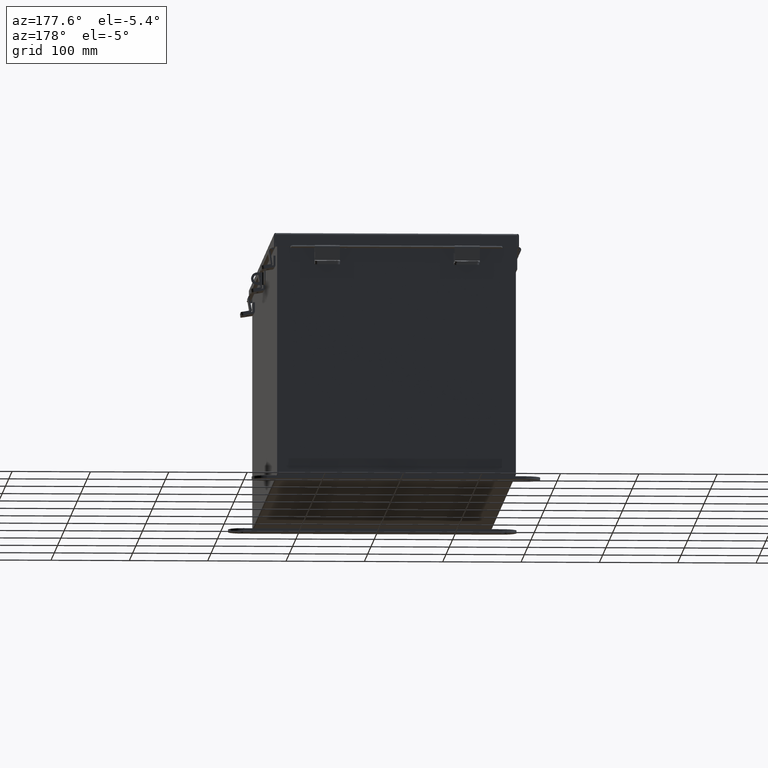
[diagram: clean part render]
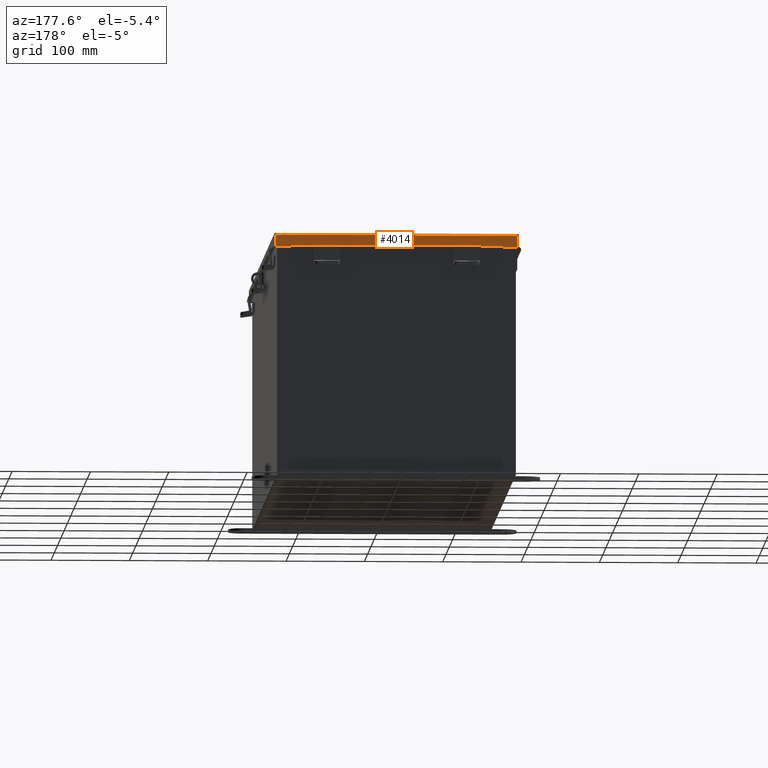
[diagram: same view with one face highlighted and labeled with its STEP entity id]
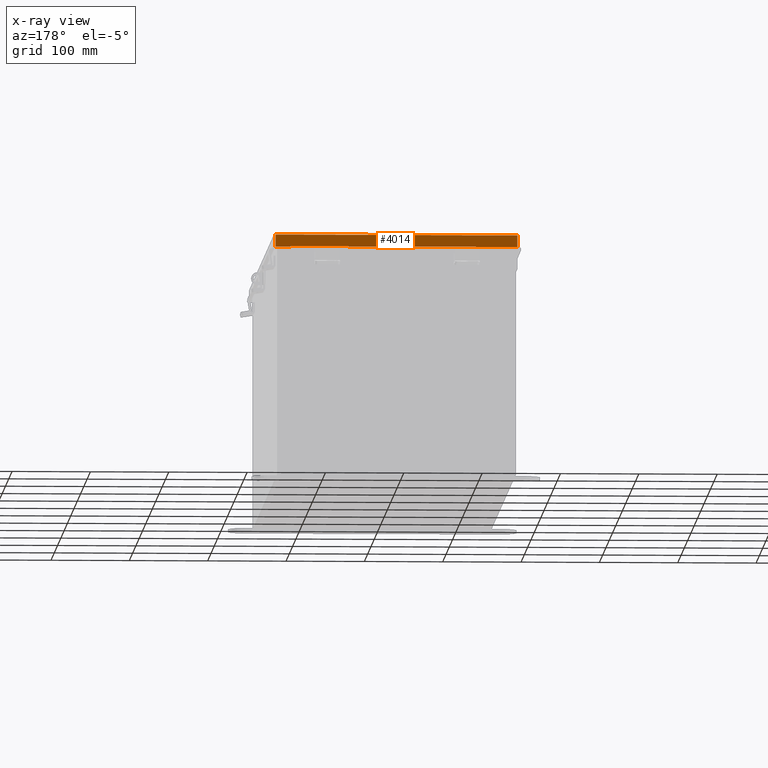
[diagram: x-ray of the same camera — body ghosted, the highlighted face saturated]
A machine part, auxiliary view. The second image highlights one B-rep face of the part: STEP entity #4014.
The next image is the same camera in x-ray: the body ghosted, the highlighted face saturated — about 0% of this face is hidden behind the body in this view.
In plain terms, the highlighted planar face has unit normal (-0, -1, -0).
Its self-contained STEP definition (entity closure, byte-faithful):
#169 = CARTESIAN_POINT ( 'NONE',  ( -9.604153102725926100E-018, 15.15625000000000000, -5.463695987328526600E-014 ) ) ;
#240 = ORIENTED_EDGE ( 'NONE', *, *, #8249, .T. ) ;
#307 = FACE_OUTER_BOUND ( 'NONE', #2263, .T. ) ;
#555 = DIRECTION ( 'NONE',  ( 1.000000000000000000, -4.881513663360842800E-043, 5.546899479520645900E-018 ) ) ;
#875 = ORIENTED_EDGE ( 'NONE', *, *, #11931, .T. ) ;
#1594 = CARTESIAN_POINT ( 'NONE',  ( 5.324478932188135600, 15.15625000000000200, 0.5967115427318804300 ) ) ;
#1694 = LINE ( 'NONE', #25008, #12480 ) ;
#1725 = CARTESIAN_POINT ( 'NONE',  ( 6.074478932188137400, 15.15625000000000000, 0.0000000000000000000 ) ) ;
#1973 = CARTESIAN_POINT ( 'NONE',  ( -5.324478932188134700, 15.15625000000000200, 0.5967115427318804300 ) ) ;
#2263 = EDGE_LOOP ( 'NONE', ( #5484, #875, #6197, #5844, #240, #14837, #7409, #10734 ) ) ;
#3054 = VECTOR ( 'NONE', #22822, 39.37007874015748100 ) ;
#3682 = LINE ( 'NONE', #6598, #3054 ) ;
#4014 = ADVANCED_FACE ( 'NONE', ( #307 ), #22550, .F. ) ;
#4880 = CARTESIAN_POINT ( 'NONE',  ( 6.074478932188137400, 15.15625000000000000, 0.01300000000000010700 ) ) ;
#4884 = VECTOR ( 'NONE', #22049, 39.37007874015748100 ) ;
#5050 = VERTEX_POINT ( 'NONE', #1973 ) ;
#5232 = CARTESIAN_POINT ( 'NONE',  ( 5.324478932188136500, 15.15625000000000400, 0.6122999999999982900 ) ) ;
#5484 = ORIENTED_EDGE ( 'NONE', *, *, #15880, .F. ) ;
#5589 = VECTOR ( 'NONE', #11762, 39.37007874015748100 ) ;
#5844 = ORIENTED_EDGE ( 'NONE', *, *, #9342, .F. ) ;
#6197 = ORIENTED_EDGE ( 'NONE', *, *, #9680, .F. ) ;
#6598 = CARTESIAN_POINT ( 'NONE',  ( -5.324478932188134700, 15.15625000000000500, 0.5967115427318804300 ) ) ;
#6754 = EDGE_CURVE ( 'NONE', #18704, #15012, #19514, .T. ) ;
#7239 = EDGE_CURVE ( 'NONE', #5050, #15012, #3682, .T. ) ;
#7409 = ORIENTED_EDGE ( 'NONE', *, *, #7239, .F. ) ;
#8249 = EDGE_CURVE ( 'NONE', #21326, #18704, #16335, .T. ) ;
#8497 = LINE ( 'NONE', #12009, #23420 ) ;
#8721 = CARTESIAN_POINT ( 'NONE',  ( -1.280553747030123400E-017, 15.15625000000000200, 0.6123000000000005100 ) ) ;
#8856 = CARTESIAN_POINT ( 'NONE',  ( -6.074478932188134700, 15.15625000000000000, 0.01300000000000010700 ) ) ;
#9280 = CARTESIAN_POINT ( 'NONE',  ( -6.074478932188134700, 15.15625000000000200, 0.6123000000000005100 ) ) ;
#9342 = EDGE_CURVE ( 'NONE', #21326, #23268, #1694, .T. ) ;
#9680 = EDGE_CURVE ( 'NONE', #23268, #9860, #10264, .T. ) ;
#9860 = VERTEX_POINT ( 'NONE', #16435 ) ;
#10264 = LINE ( 'NONE', #1725, #4884 ) ;
#10734 = ORIENTED_EDGE ( 'NONE', *, *, #25517, .F. ) ;
#11713 = VECTOR ( 'NONE', #23401, 39.37007874015748100 ) ;
#11762 = DIRECTION ( 'NONE',  ( 0.0000000000000000000, 3.569293475308526100E-015, 1.000000000000000000 ) ) ;
#11931 = EDGE_CURVE ( 'NONE', #14026, #9860, #18697, .T. ) ;
#12009 = CARTESIAN_POINT ( 'NONE',  ( 5.324478932188136500, 15.15625000000000500, 0.5967115427318804300 ) ) ;
#12347 = LINE ( 'NONE', #5232, #11713 ) ;
#12415 = DIRECTION ( 'NONE',  ( 0.0000000000000000000, -3.569293475308526100E-015, -1.000000000000000000 ) ) ;
#12480 = VECTOR ( 'NONE', #12804, 39.37007874015748100 ) ;
#12804 = DIRECTION ( 'NONE',  ( 1.000000000000000000, -2.465190328864458800E-032, -0.0000000000000000000 ) ) ;
#14026 = VERTEX_POINT ( 'NONE', #16219 ) ;
#14751 = VECTOR ( 'NONE', #555, 39.37007874015748100 ) ;
#14837 = ORIENTED_EDGE ( 'NONE', *, *, #6754, .T. ) ;
#15012 = VERTEX_POINT ( 'NONE', #20862 ) ;
#15368 = VERTEX_POINT ( 'NONE', #1594 ) ;
#15680 = CARTESIAN_POINT ( 'NONE',  ( -1.280553747030123400E-017, 15.15625000000000200, 0.6123000000000005100 ) ) ;
#15880 = EDGE_CURVE ( 'NONE', #14026, #15368, #12347, .T. ) ;
#16219 = CARTESIAN_POINT ( 'NONE',  ( 5.324478932188136500, 15.15625000000000200, 0.6123000000000005100 ) ) ;
#16335 = LINE ( 'NONE', #25984, #5589 ) ;
#16435 = CARTESIAN_POINT ( 'NONE',  ( 6.074478932188137400, 15.15625000000000200, 0.6123000000000005100 ) ) ;
#17744 = DIRECTION ( 'NONE',  ( 1.000000000000000000, -4.881513663360842800E-043, 5.546899479520645900E-018 ) ) ;
#18058 = VECTOR ( 'NONE', #17744, 39.37007874015748100 ) ;
#18697 = LINE ( 'NONE', #15680, #18058 ) ;
#18704 = VERTEX_POINT ( 'NONE', #9280 ) ;
#19514 = LINE ( 'NONE', #8721, #14751 ) ;
#20862 = CARTESIAN_POINT ( 'NONE',  ( -5.324478932188135600, 15.15625000000000200, 0.6123000000000005100 ) ) ;
#21326 = VERTEX_POINT ( 'NONE', #8856 ) ;
#22049 = DIRECTION ( 'NONE',  ( -0.0000000000000000000, 3.569293475308526100E-015, 1.000000000000000000 ) ) ;
#22550 = PLANE ( 'NONE',  #23684 ) ;
#22822 = DIRECTION ( 'NONE',  ( 0.0000000000000000000, -1.401985044024241700E-013, 1.000000000000000000 ) ) ;
#23268 = VERTEX_POINT ( 'NONE', #4880 ) ;
#23401 = DIRECTION ( 'NONE',  ( -7.009925220121361000E-014, 1.401985044024272200E-013, -1.000000000000000000 ) ) ;
#23420 = VECTOR ( 'NONE', #26245, 39.37007874015748100 ) ;
#23684 = AXIS2_PLACEMENT_3D ( 'NONE', #169, #24599, #12415 ) ;
#24599 = DIRECTION ( 'NONE',  ( -2.543385728134196700E-032, -1.000000000000000000, 3.569293475308526100E-015 ) ) ;
#25008 = CARTESIAN_POINT ( 'NONE',  ( 6.156249999999999100, 15.15625000000000000, 0.01300000000000010700 ) ) ;
#25517 = EDGE_CURVE ( 'NONE', #15368, #5050, #8497, .T. ) ;
#25984 = CARTESIAN_POINT ( 'NONE',  ( -6.074478932188134700, 15.15625000000000000, -5.463695987328526600E-014 ) ) ;
#26245 = DIRECTION ( 'NONE',  ( -1.000000000000000000, 4.879687452983731800E-043, -0.0000000000000000000 ) ) ;